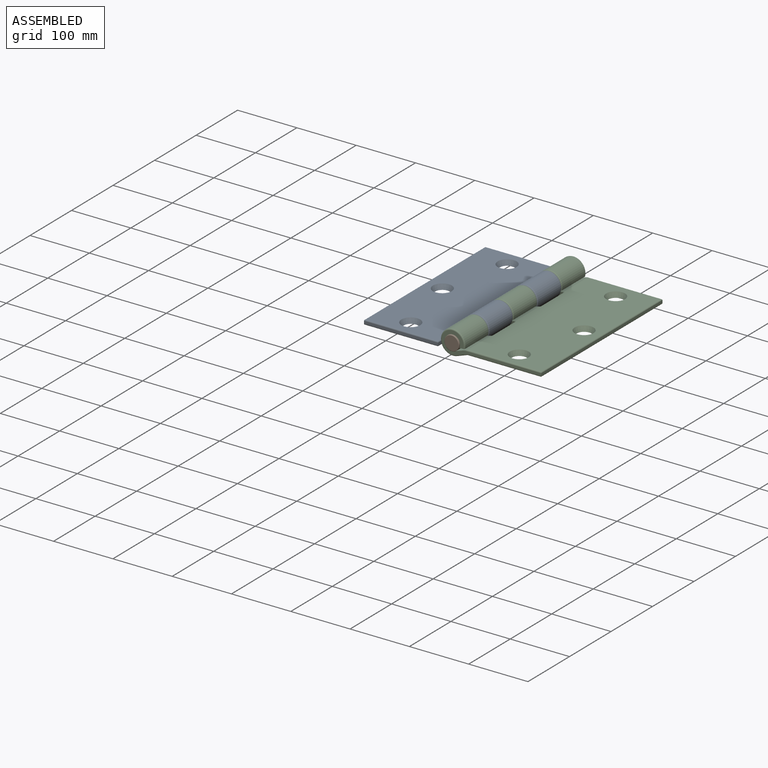
[diagram: assembled view]
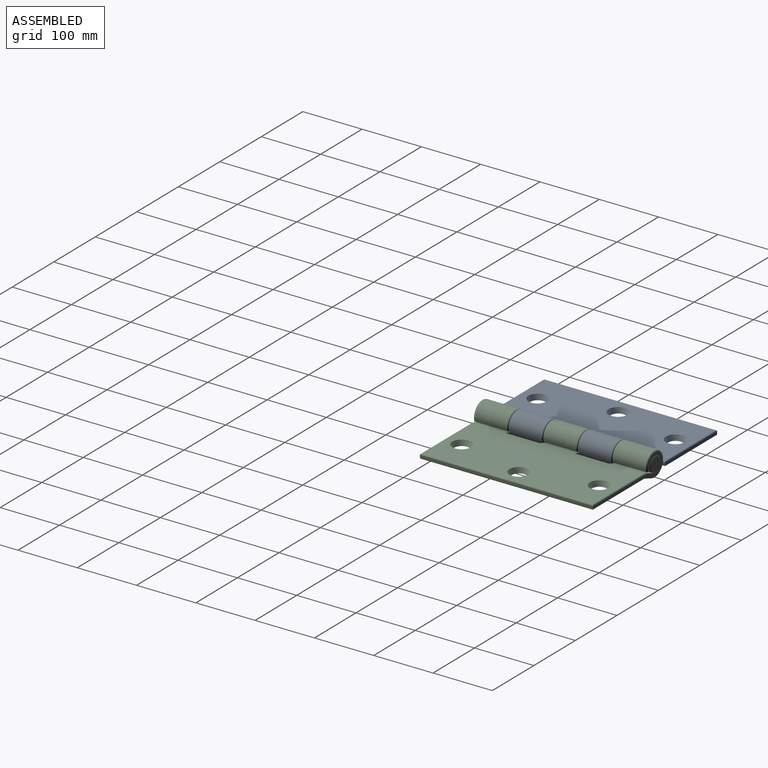
[diagram: assembled view, second angle]
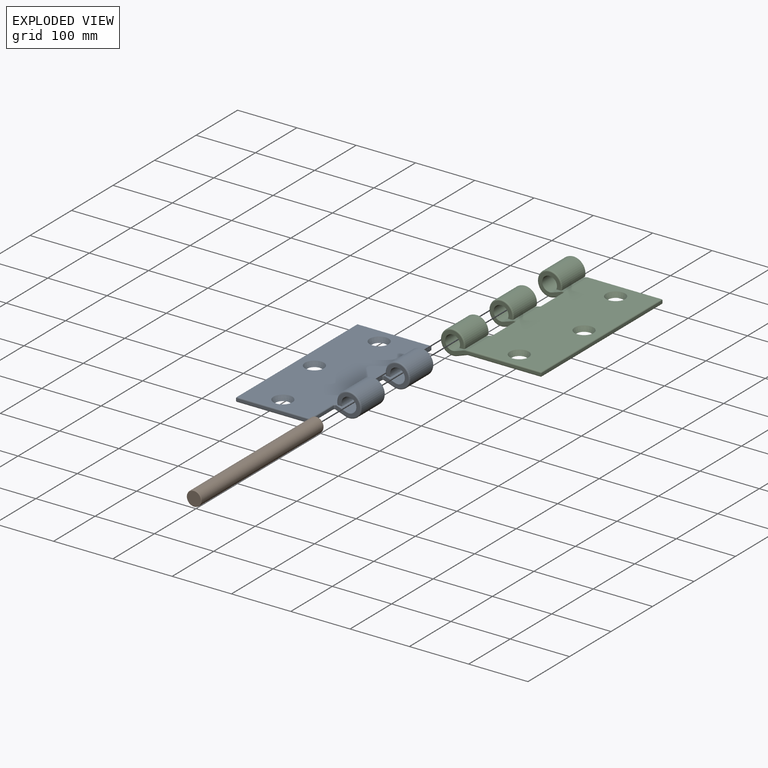
[diagram: exploded view]
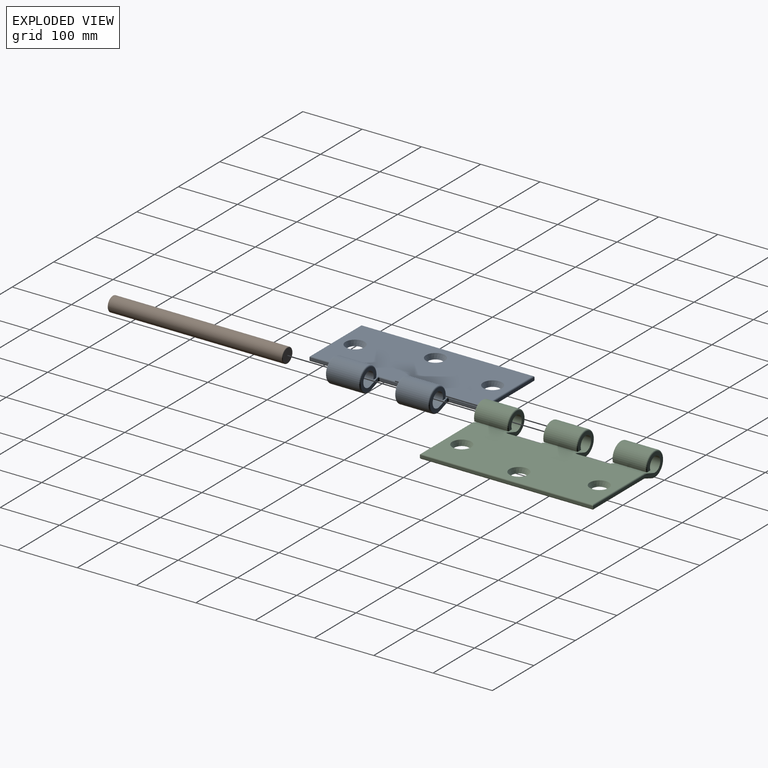
[diagram: exploded view, second angle]
ASSEMBLY  parts=3 mates=2
PART A: 57 faces, bbox 171.8x292.1x44.5 mm
  f0: cylinder r=12.5mm len=58.4mm, axis (0,1,0), area 3975.6mm2, adj f2,f8,f21,f24
  f1: cylinder r=12.5mm len=58.4mm, axis (0,1,0), area 3975.6mm2, adj f3,f9,f19,f22
  f2: plane 58.4x20.54mm, normal (0.32,0,0.95), area 1260.9mm2, adj f0,f10,f21,f24,f35,f36
  f3: plane 58.4x20.54mm, normal (0.32,0,0.95), area 1260.9mm2, adj f1,f10,f19,f22,f29,f38
  f4: plane 54.4x17.59mm, normal (-0.34,0,-0.94), area 1016.3mm2, adj f6,f12,f50,f52
  f5: plane 54.4x17.59mm, normal (-0.34,0,-0.94), area 1016.3mm2, adj f7,f12,f54,f56
  f6: cylinder r=20.5mm len=54.4mm, axis (0,1,0), area 5913.6mm2, adj f4,f8,f49,f51
  f7: cylinder r=20.5mm len=54.4mm, axis (0,1,0), area 5913.6mm2, adj f5,f9,f53,f55
  f8: plane 58.4x8.42mm, normal (0,0,-1), area 490.2mm2, adj f0,f6,f21,f24,f49,f51
  f9: plane 58.4x8.42mm, normal (0,0,-1), area 490.2mm2, adj f1,f7,f19,f22,f53,f55
  f10: plane 288x123mm, normal (0,0,1), area 32665.2mm2, adj f2,f3,f15,f16,f17,f29,f30,f31
  f11: plane 292x4mm, normal (-1,0,0), area 1168mm2, adj f13,f14,f32,f45
  f12: plane 288.07x123.23mm, normal (0,0,-1), area 33720.9mm2, adj f4,f5,f15,f16,f17,f39,f40,f41
  f13: plane 125x4mm, normal (0,-1,0), area 500mm2, adj f11,f18,f31,f44
  f14: plane 125x4mm, normal (0,1,0), area 500mm2, adj f11,f23,f33,f46
  f15: cone r=12mm half-angle=26.6deg, axis (0,0,1), area 786.8mm2, adj f10,f12
  f16: cone r=12mm half-angle=26.6deg, axis (0,0,1), area 786.8mm2, adj f10,f12
  f17: cone r=16mm half-angle=26.6deg, axis (0,0,1), area 786.8mm2, adj f10,f12
  f18: plane 56.4x4mm, normal (1,0,0), area 225.6mm2, adj f13,f25,f30,f43
  f19: plane 41.48x37.04mm, normal (0,-1,0), area 606.2mm2, adj f1,f3,f9,f25,f29,f42,f55,f56
  f20: plane 54.4x4mm, normal (1,0,0), area 217.6mm2, adj f26,f27,f37,f40
  f21: plane 41.48x37.04mm, normal (0,-1,0), area 606.2mm2, adj f0,f2,f8,f26,f36,f39,f51,f52
  f22: plane 41.48x37.04mm, normal (0,1,0), area 606.2mm2, adj f1,f3,f9,f27,f38,f41,f53,f54
  f23: plane 56.4x4mm, normal (1,0,0), area 225.6mm2, adj f14,f28,f34,f48
  f24: plane 41.48x37.04mm, normal (0,1,0), area 606.2mm2, adj f0,f2,f8,f28,f35,f47,f49,f50
  f25: cylinder r=2mm len=4mm, axis (0,0,1), area 12.6mm2, adj f18,f19,f29,f42
  f26: cylinder r=2mm len=4mm, axis (0,0,1), area 12.6mm2, adj f20,f21,f36,f39
  f27: cylinder r=2mm len=4mm, axis (0,0,-1), area 12.6mm2, adj f20,f22,f38,f41
  f28: cylinder r=2mm len=4mm, axis (0,0,-1), area 12.6mm2, adj f23,f24,f35,f47
  f29: torus R=4mm, axis (0,0,-1), area 11.9mm2, adj f3,f10,f19,f25,f30
  f30: cylinder r=2mm len=56.4mm, axis (0,1,0), area 174.9mm2, adj f10,f18,f29,f31
  f31: cylinder r=2mm len=125mm, axis (1,0,0), area 388.1mm2, adj f10,f13,f30,f32
  f32: cylinder r=2mm len=292mm, axis (0,1,0), area 912.8mm2, adj f10,f11,f31,f33
  f33: cylinder r=2mm len=125mm, axis (-1,0,0), area 388.1mm2, adj f10,f14,f32,f34
  f34: cylinder r=2mm len=56.4mm, axis (0,1,0), area 174.9mm2, adj f10,f23,f33,f35
  f35: torus R=4mm, axis (0,0,-1), area 11.9mm2, adj f2,f10,f24,f28,f34
  f36: torus R=4mm, axis (0,0,-1), area 11.9mm2, adj f2,f10,f21,f26,f37
  f37: cylinder r=2mm len=54.4mm, axis (0,1,0), area 170.9mm2, adj f10,f20,f36,f38
  f38: torus R=4mm, axis (0,0,-1), area 11.9mm2, adj f3,f10,f22,f27,f37
  f39: torus R=4mm, axis (0,0,1), area 10.1mm2, adj f12,f21,f26,f40,f52
  f40: cylinder r=2mm len=54.4mm, axis (0,1,0), area 170.9mm2, adj f12,f20,f39,f41
  f41: torus R=4mm, axis (0,0,1), area 10.1mm2, adj f12,f22,f27,f40,f54
  f42: torus R=4mm, axis (0,0,1), area 10.1mm2, adj f12,f19,f25,f43,f56
  f43: cylinder r=2mm len=56.4mm, axis (0,1,0), area 174.9mm2, adj f12,f18,f42,f44
  f44: cylinder r=2mm len=125mm, axis (-1,0,0), area 388.1mm2, adj f12,f13,f43,f45
  f45: cylinder r=2mm len=292mm, axis (0,1,0), area 912.8mm2, adj f11,f12,f44,f46
  f46: cylinder r=2mm len=125mm, axis (1,0,0), area 388.1mm2, adj f12,f14,f45,f48
  f47: torus R=4mm, axis (0,0,1), area 10.1mm2, adj f12,f24,f28,f48,f50
  f48: cylinder r=2mm len=56.4mm, axis (0,-1,0), area 174.9mm2, adj f12,f23,f46,f47
  f49: torus R=18.5mm, axis (0,1,0), area 330mm2, adj f6,f8,f24,f50
  f50: cylinder r=2mm len=18.26mm, axis (0.94,0,-0.34), area 57mm2, adj f4,f12,f24,f47,f49
  f51: torus R=18.5mm, axis (0,1,0), area 330mm2, adj f6,f8,f21,f52
  f52: cylinder r=2mm len=18.26mm, axis (-0.94,0,0.34), area 57mm2, adj f4,f12,f21,f39,f51
  f53: torus R=18.5mm, axis (0,1,0), area 330mm2, adj f7,f9,f22,f54
  f54: cylinder r=2mm len=18.26mm, axis (0.94,0,-0.34), area 57mm2, adj f5,f12,f22,f41,f53
  f55: torus R=18.5mm, axis (0,1,0), area 330mm2, adj f7,f9,f19,f56
  f56: cylinder r=2mm len=18.26mm, axis (-0.94,0,0.34), area 57mm2, adj f5,f12,f19,f42,f55
PART B: 5 faces, bbox 27x295x27 mm
  f0: cylinder r=12.45mm len=293mm, axis (0,-1,0), area 22920.1mm2, adj f3,f4
  f1: plane 22.9x22.9mm, normal (0,1,0), area 411.9mm2, adj f4
  f2: plane 22.9x22.9mm, normal (0,-1,0), area 411.9mm2, adj f3
  f3: torus R=11.45mm, axis (0,-1,0), area 119.3mm2, adj f0,f2
  f4: torus R=11.45mm, axis (0,-1,0), area 119.3mm2, adj f0,f1
PART C: 63 faces, bbox 171.8x292.1x44.5 mm
  f0: cylinder r=12.5mm len=58.4mm, axis (0,1,0), area 3975.6mm2, adj f2,f8,f19,f28
  f1: cylinder r=12.5mm len=58.4mm, axis (0,1,0), area 3975.6mm2, adj f3,f9,f25,f27
  f2: plane 58.4x20.54mm, normal (-0.32,0,0.95), area 1260.1mm2, adj f0,f12,f19,f28,f36,f45
  f3: plane 58.4x20.54mm, normal (-0.32,0,0.95), area 1260.9mm2, adj f1,f12,f25,f27,f38,f42
  f4: plane 54.4x17.59mm, normal (0.34,0,-0.94), area 1016.3mm2, adj f6,f14,f54,f59
  f5: plane 54.4x17.59mm, normal (0.34,0,-0.94), area 1016.3mm2, adj f7,f14,f52,f58
  f6: cylinder r=20.5mm len=54.4mm, axis (0,1,0), area 5913.6mm2, adj f4,f8,f53,f60
  f7: cylinder r=20.5mm len=54.4mm, axis (0,1,0), area 5913.6mm2, adj f5,f9,f51,f57
  f8: plane 58.4x8.42mm, normal (0,0,-1), area 490.2mm2, adj f0,f6,f19,f28,f53,f60
  f9: plane 58.4x8.42mm, normal (0,0,-1), area 490.2mm2, adj f1,f7,f25,f27,f51,f57
  f10: cylinder r=12.5mm len=58.4mm, axis (0,1,0), area 3975.6mm2, adj f11,f17,f18,f24
  f11: plane 58.4x20.54mm, normal (-0.32,0,0.95), area 1260.1mm2, adj f10,f12,f18,f24,f44,f47
  f12: plane 288x123mm, normal (0,0,1), area 32774mm2, adj f2,f3,f11,f20,f21,f22,f36,f37
  f13: plane 292x4mm, normal (1,0,0), area 1168mm2, adj f18,f19,f46,f49
  f14: plane 288.07x123.23mm, normal (0,0,-1), area 33829.7mm2, adj f4,f5,f15,f20,f21,f22,f33,f34
  f15: plane 54.4x17.59mm, normal (0.34,0,-0.94), area 1016.3mm2, adj f14,f16,f56,f61
  f16: cylinder r=20.5mm len=54.4mm, axis (0,1,0), area 5913.6mm2, adj f15,f17,f55,f62
  f17: plane 58.4x8.42mm, normal (0,0,-1), area 490.2mm2, adj f10,f16,f18,f24,f55,f62
  f18: plane 168x37mm, normal (0,-1,0), area 1112.6mm2, adj f10,f11,f13,f17,f47,f50,f61,f62
  f19: plane 168x37mm, normal (0,1,0), area 1112.6mm2, adj f0,f2,f8,f13,f45,f48,f59,f60
  f20: cone r=12mm half-angle=26.6deg, axis (0,0,1), area 786.8mm2, adj f12,f14
  f21: cone r=12mm half-angle=26.6deg, axis (0,0,1), area 786.8mm2, adj f12,f14
  f22: cone r=16mm half-angle=26.6deg, axis (0,0,1), area 786.8mm2, adj f12,f14
  f23: plane 54.4x4mm, normal (-1,0,0), area 217.6mm2, adj f29,f30,f40,f43
  f24: plane 41.48x37.04mm, normal (0,1,0), area 606.2mm2, adj f10,f11,f17,f29,f41,f44,f55,f56
  f25: plane 41.48x37.04mm, normal (0,-1,0), area 606.2mm2, adj f1,f3,f9,f30,f39,f42,f57,f58
  f26: plane 54.4x4mm, normal (-1,0,0), area 217.6mm2, adj f31,f32,f34,f37
  f27: plane 41.48x37.04mm, normal (0,1,0), area 606.2mm2, adj f1,f3,f9,f31,f35,f38,f51,f52
  f28: plane 41.48x37.04mm, normal (0,-1,0), area 606.2mm2, adj f0,f2,f8,f32,f33,f36,f53,f54
  f29: cylinder r=2mm len=4mm, axis (0,0,-1), area 12.6mm2, adj f23,f24,f41,f44
  f30: cylinder r=2mm len=4mm, axis (0,0,1), area 12.6mm2, adj f23,f25,f39,f42
  f31: cylinder r=2mm len=4mm, axis (0,0,-1), area 12.6mm2, adj f26,f27,f35,f38
  f32: cylinder r=2mm len=4mm, axis (0,0,1), area 12.6mm2, adj f26,f28,f33,f36
  f33: torus R=4mm, axis (0,0,1), area 10.1mm2, adj f14,f28,f32,f34,f54
  f34: cylinder r=2mm len=54.4mm, axis (0,-1,0), area 170.9mm2, adj f14,f26,f33,f35
  f35: torus R=4mm, axis (0,0,1), area 10.1mm2, adj f14,f27,f31,f34,f52
  f36: torus R=4mm, axis (0,0,-1), area 11.9mm2, adj f2,f12,f28,f32,f37
  f37: cylinder r=2mm len=54.4mm, axis (0,-1,0), area 170.9mm2, adj f12,f26,f36,f38
  f38: torus R=4mm, axis (0,0,-1), area 11.9mm2, adj f3,f12,f27,f31,f37
  f39: torus R=4mm, axis (0,0,1), area 10.1mm2, adj f14,f25,f30,f40,f58
  f40: cylinder r=2mm len=54.4mm, axis (0,-1,0), area 170.9mm2, adj f14,f23,f39,f41
  f41: torus R=4mm, axis (0,0,1), area 10.1mm2, adj f14,f24,f29,f40,f56
  f42: torus R=4mm, axis (0,0,-1), area 11.9mm2, adj f3,f12,f25,f30,f43
  f43: cylinder r=2mm len=54.4mm, axis (0,-1,0), area 170.9mm2, adj f12,f23,f42,f44
  f44: torus R=4mm, axis (0,0,-1), area 11.9mm2, adj f11,f12,f24,f29,f43
  f45: cylinder r=2mm len=130.99mm, axis (1,0,0), area 397.3mm2, adj f2,f12,f19,f46
  f46: cylinder r=2mm len=292mm, axis (0,1,0), area 912.8mm2, adj f12,f13,f45,f47
  f47: cylinder r=2mm len=130.99mm, axis (-1,0,0), area 397.3mm2, adj f11,f12,f18,f46
  f48: cylinder r=2mm len=125.35mm, axis (-1,0,0), area 391mm2, adj f14,f19,f49,f59
  f49: cylinder r=2mm len=292mm, axis (0,1,0), area 912.8mm2, adj f13,f14,f48,f50
  f50: cylinder r=2mm len=125.35mm, axis (1,0,0), area 391mm2, adj f14,f18,f49,f61
  f51: torus R=18.5mm, axis (0,-1,0), area 330mm2, adj f7,f9,f27,f52
  f52: cylinder r=2mm len=18.26mm, axis (0.94,0,0.34), area 57mm2, adj f5,f14,f27,f35,f51
  f53: torus R=18.5mm, axis (0,-1,0), area 330mm2, adj f6,f8,f28,f54
  f54: cylinder r=2mm len=18.26mm, axis (-0.94,0,-0.34), area 57mm2, adj f4,f14,f28,f33,f53
  f55: torus R=18.5mm, axis (0,-1,0), area 330mm2, adj f16,f17,f24,f56
  f56: cylinder r=2mm len=18.26mm, axis (0.94,0,0.34), area 57mm2, adj f14,f15,f24,f41,f55
  f57: torus R=18.5mm, axis (0,-1,0), area 330mm2, adj f7,f9,f25,f58
  f58: cylinder r=2mm len=18.26mm, axis (-0.94,0,-0.34), area 57mm2, adj f5,f14,f25,f39,f57
  f59: cylinder r=2mm len=18.59mm, axis (-0.94,0,-0.34), area 59.2mm2, adj f4,f19,f48,f60
  f60: torus R=18.5mm, axis (0,-1,0), area 330mm2, adj f6,f8,f19,f59
  f61: cylinder r=2mm len=18.59mm, axis (0.94,0,0.34), area 59.2mm2, adj f15,f18,f50,f62
  f62: torus R=18.5mm, axis (0,-1,0), area 330mm2, adj f16,f17,f18,f61
PLACE A t=(-212.38,92.91,-50.11)mm fixed
PLACE B rot(axis=(0.01,1,-0.01),0deg) t=(-9.94,-201.61,20.85)mm
PLACE C rot(axis=(0,1,0),0deg) t=(-463.38,92.91,-50.11)mm
MATE slider B.f0 <-> C.f53  axis (0,-1,0) through (-187.88,-201.61,-45.11)mm
MATE revolute A.f0 <-> C.f53  axis (0,1,0) through (-187.88,-82.29,-45.11)mm
